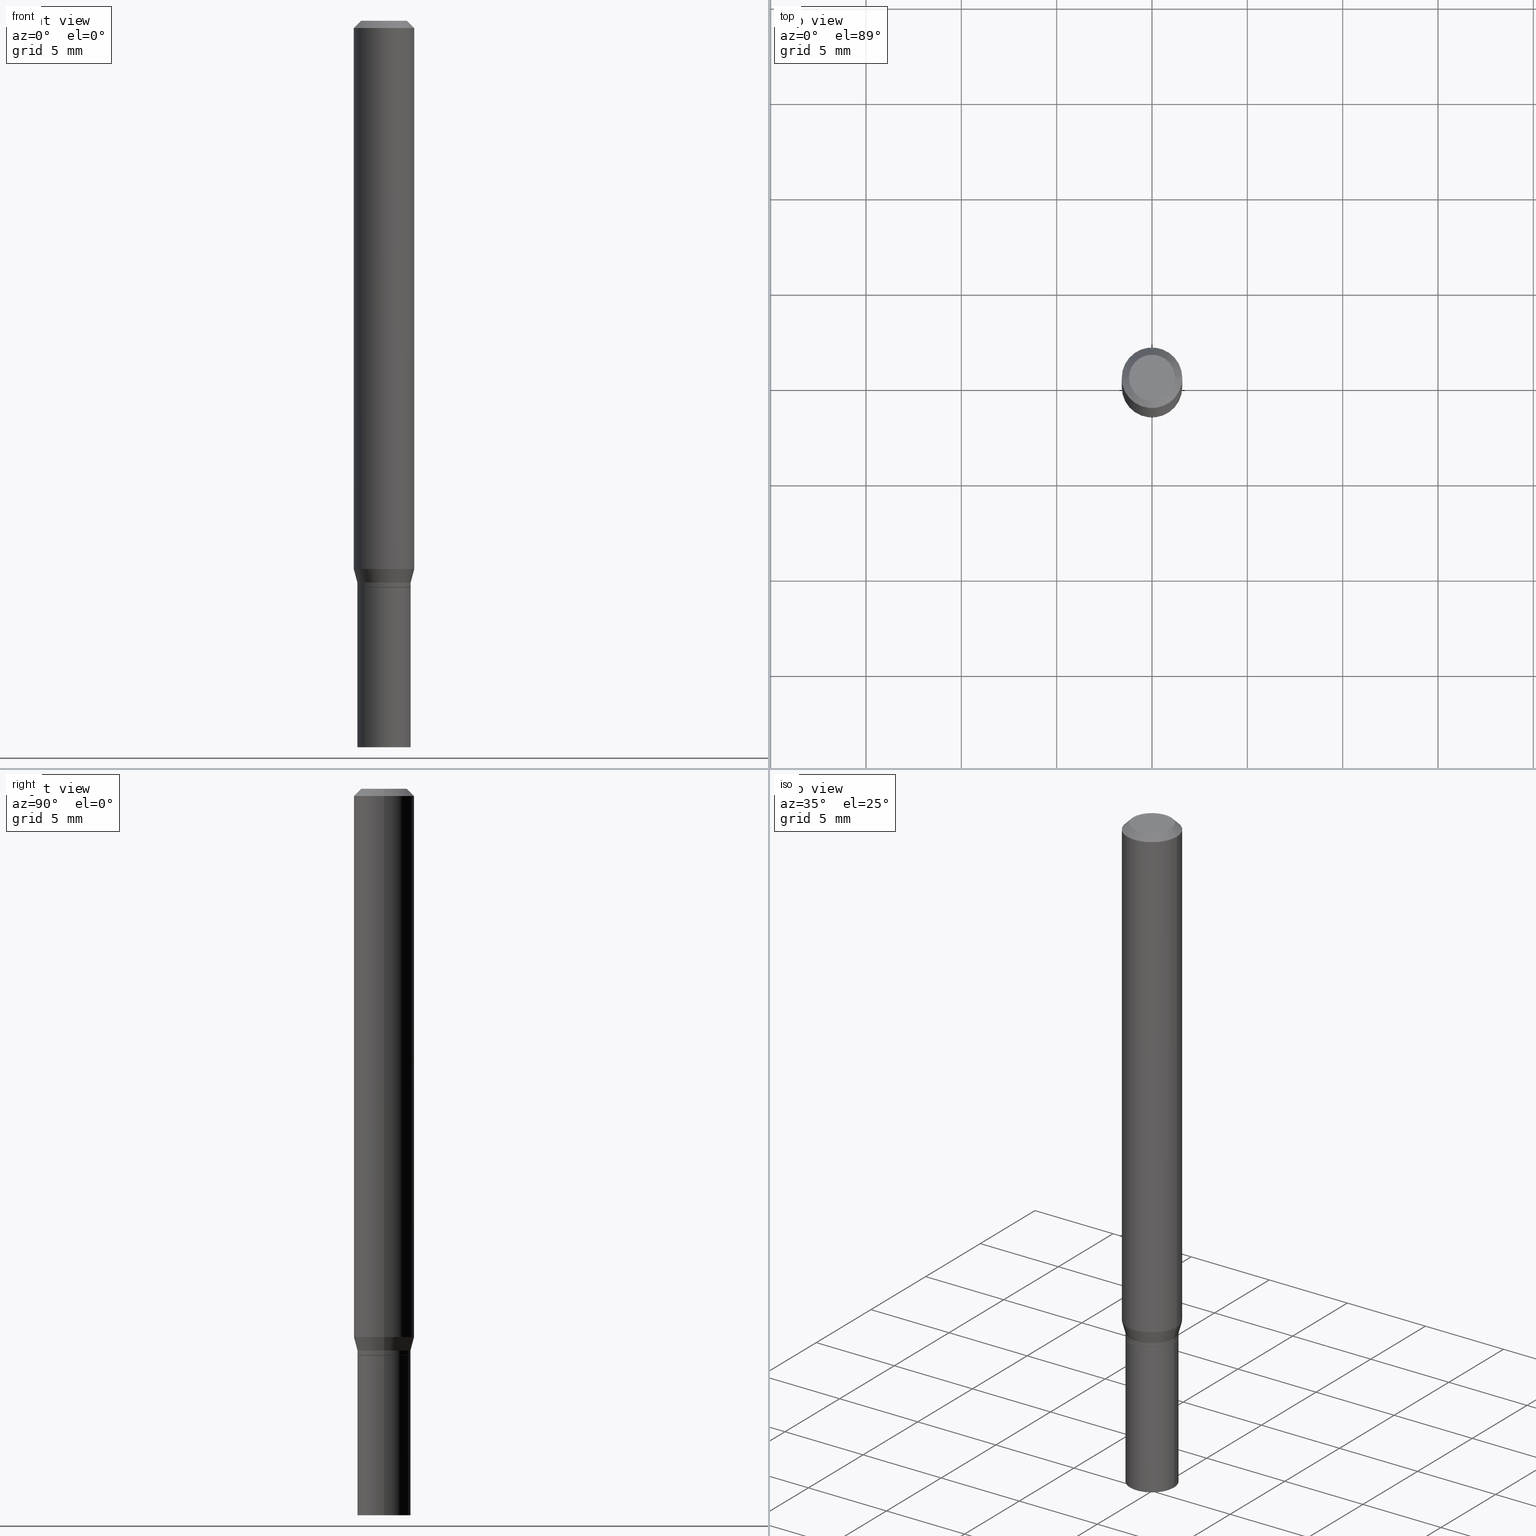
[diagram: canonical four-view strip — front | top / right | iso, engineering-drawing reading convention]
A machine part, canonical four-view strip (front | top / right | iso — engineering-drawing reading convention). The complete STEP part file that produces these views, byte-faithful:
ISO-10303-21;
HEADER;
FILE_DESCRIPTION (( 'STEP AP203' ),
    '1' );
FILE_NAME ('00878.STEP',
    '2024-03-19T22:45:41',
    ( '' ),
    ( '' ),
    'SwSTEP 2.0',
    'SolidWorks 2023',
    '' );
FILE_SCHEMA (( 'CONFIG_CONTROL_DESIGN' ));
ENDSEC;

DATA;
#1 = DIRECTION ( 'NONE',  ( -2.445468806185136877E-29, 3.491481338843145188E-15, 1.000000000000000000 ) ) ;
#2 = PERSON_AND_ORGANIZATION ( #445, #74 ) ;
#3 = ORIENTED_EDGE ( 'NONE', *, *, #59, .F. ) ;
#4 = DATE_AND_TIME ( #185, #334 ) ;
#5 = VERTEX_POINT ( 'NONE', #393 ) ;
#6 = FACE_OUTER_BOUND ( 'NONE', #103, .T. ) ;
#7 = ORIENTED_EDGE ( 'NONE', *, *, #268, .F. ) ;
#8 = DIRECTION ( 'NONE',  ( -2.445468806185136597E-29, 3.491481338843145583E-15, 1.000000000000000000 ) ) ;
#9 = VERTEX_POINT ( 'NONE', #287 ) ;
#10 = PRODUCT_RELATED_PRODUCT_CATEGORY ( 'detail', '', ( #371 ) ) ;
#11 = CARTESIAN_POINT ( 'NONE',  ( 2.836743815174758520E-29, -4.050118353058049996E-15, -1.160000000000000142 ) ) ;
#12 = VERTEX_POINT ( 'NONE', #143 ) ;
#13 = AXIS2_PLACEMENT_3D ( 'NONE', #261, #8, #403 ) ;
#14 = DIRECTION ( 'NONE',  ( 1.000000000000000000, -6.982962677686262766E-15, 0.000000000000000000 ) ) ;
#15 = EDGE_LOOP ( 'NONE', ( #327, #330, #246, #456 ) ) ;
#16 = FACE_OUTER_BOUND ( 'NONE', #241, .T. ) ;
#17 =( CONVERSION_BASED_UNIT ( 'INCH', #93 ) LENGTH_UNIT ( ) NAMED_UNIT ( #48 ) );
#18 = ORIENTED_EDGE ( 'NONE', *, *, #122, .T. ) ;
#19 = CARTESIAN_POINT ( 'NONE',  ( 0.000000000000000000, 0.000000000000000000, 0.000000000000000000 ) ) ;
#20 = EDGE_CURVE ( 'NONE', #5, #462, #307, .T. ) ;
#21 = ORIENTED_EDGE ( 'NONE', *, *, #92, .F. ) ;
#22 = EDGE_CURVE ( 'NONE', #372, #12, #291, .T. ) ;
#23 = ORIENTED_EDGE ( 'NONE', *, *, #384, .T. ) ;
#24 = CARTESIAN_POINT ( 'NONE',  ( 3.316907271900976096E-16, 0.04749999999999999362, 9.606345999275825217E-17 ) ) ;
#25 = ORIENTED_EDGE ( 'NONE', *, *, #290, .T. ) ;
#26 = DIRECTION ( 'NONE',  ( -2.445468806185136877E-29, 3.491481338843145188E-15, 1.000000000000000000 ) ) ;
#27 = ORIENTED_EDGE ( 'NONE', *, *, #46, .T. ) ;
#28 = AXIS2_PLACEMENT_3D ( 'NONE', #132, #164, #173 ) ;
#29 = APPROVAL_ROLE ( '' ) ;
#30 = DIRECTION ( 'NONE',  ( -2.445468806185136597E-29, 3.491481338843145583E-15, 1.000000000000000000 ) ) ;
#31 = COORDINATED_UNIVERSAL_TIME_OFFSET ( 5, 0, .BEHIND. ) ;
#32 = LINE ( 'NONE', #197, #279 ) ;
#33 = LINE ( 'NONE', #177, #239 ) ;
#34 = AXIS2_PLACEMENT_3D ( 'NONE', #352, #30, #433 ) ;
#35 = AXIS2_PLACEMENT_3D ( 'NONE', #258, #325, #70 ) ;
#36 = AXIS2_PLACEMENT_3D ( 'NONE', #24, #60, #275 ) ;
#37 = EDGE_CURVE ( 'NONE', #9, #344, #33, .T. ) ;
#38 = DIRECTION ( 'NONE',  ( -2.445468806185136877E-29, 3.491481338843145188E-15, 1.000000000000000000 ) ) ;
#39 = UNCERTAINTY_MEASURE_WITH_UNIT (LENGTH_MEASURE( 1.000000000000000082E-05 ), #17, 'distance_accuracy_value', 'NONE');
#40 = PERSON_AND_ORGANIZATION ( #445, #74 ) ;
#41 = DIRECTION ( 'NONE',  ( -2.445468806185136597E-29, 3.491481338843145583E-15, 1.000000000000000000 ) ) ;
#42 = DIRECTION ( 'NONE',  ( -1.000000000000000000, 6.982962677686266711E-15, 0.000000000000000000 ) ) ;
#43 = EDGE_CURVE ( 'NONE', #344, #61, #105, .T. ) ;
#44 = CLOSED_SHELL ( 'NONE', ( #205, #129, #217, #67 ) ) ;
#45 = CARTESIAN_POINT ( 'NONE',  ( -0.05500000000000000028, -4.270329082687544462E-15, -1.500000000000000222 ) ) ;
#46 = EDGE_CURVE ( 'NONE', #413, #372, #359, .T. ) ;
#47 = LINE ( 'NONE', #447, #188 ) ;
#48 = DIMENSIONAL_EXPONENTS ( 1.000000000000000000, 0.000000000000000000, 0.000000000000000000, 0.000000000000000000, 0.000000000000000000, 0.000000000000000000, 0.000000000000000000 ) ;
#49 = DIRECTION ( 'NONE',  ( -2.445468806185136877E-29, 3.491481338843145188E-15, 1.000000000000000000 ) ) ;
#50 = CONICAL_SURFACE ( 'NONE', #332, 0.05499999999999992395, 0.2617993877991495744 ) ;
#51 = CC_DESIGN_PERSON_AND_ORGANIZATION_ASSIGNMENT ( #222, #466, ( #371 ) ) ;
#52 = CARTESIAN_POINT ( 'NONE',  ( 0.05500000000000006273, -4.467350373049804337E-15, -1.169499999999999984 ) ) ;
#53 = CARTESIAN_POINT ( 'NONE',  ( 0.000000000000000000, 0.000000000000000000, 0.000000000000000000 ) ) ;
#54 = LINE ( 'NONE', #380, #421 ) ;
#55 = ORIENTED_EDGE ( 'NONE', *, *, #355, .F. ) ;
#56 = AXIS2_PLACEMENT_3D ( 'NONE', #296, #151, #299 ) ;
#57 = AXIS2_PLACEMENT_3D ( 'NONE', #387, #98, #236 ) ;
#58 = ORIENTED_EDGE ( 'NONE', *, *, #82, .F. ) ;
#59 = EDGE_CURVE ( 'NONE', #200, #12, #123, .T. ) ;
#60 = DIRECTION ( 'NONE',  ( 2.438088387897960049E-29, -3.491481338843145188E-15, -1.000000000000000000 ) ) ;
#61 = VERTEX_POINT ( 'NONE', #180 ) ;
#62 = FACE_OUTER_BOUND ( 'NONE', #167, .T. ) ;
#63 = ORIENTED_EDGE ( 'NONE', *, *, #309, .T. ) ;
#64 = COORDINATED_UNIVERSAL_TIME_OFFSET ( 5, 0, .BEHIND. ) ;
#65 = VECTOR ( 'NONE', #271, 39.37007874015748143 ) ;
#66 = VERTEX_POINT ( 'NONE', #254 ) ;
#67 = ADVANCED_FACE ( 'NONE', ( #363 ), #252, .F. ) ;
#68 = APPROVAL_DATE_TIME ( #4, #155 ) ;
#69 = CARTESIAN_POINT ( 'NONE',  ( 0.06250000000000000000, -4.364351673553916694E-16, 3.047610484872459871E-30 ) ) ;
#70 = DIRECTION ( 'NONE',  ( 1.000000000000000000, -6.982962677686266711E-15, 0.000000000000000000 ) ) ;
#71 = EDGE_CURVE ( 'NONE', #101, #347, #231, .T. ) ;
#72 = PERSON_AND_ORGANIZATION_ROLE ( 'creator' ) ;
#73 = DIRECTION ( 'NONE',  ( -2.438088387897960049E-29, 3.491481338843145188E-15, 1.000000000000000000 ) ) ;
#74 = ORGANIZATION ( 'UNSPECIFIED', 'UNSPECIFIED', '' ) ;
#75 = ADVANCED_BREP_SHAPE_REPRESENTATION ( '00878', ( #148, #303, #107 ), #248 ) ;
#76 = CALENDAR_DATE ( 2024, 19, 3 ) ;
#77 = DIRECTION ( 'NONE',  ( -1.000000000000000000, 6.982962677686265922E-15, -4.876176775795935793E-29 ) ) ;
#78 = CARTESIAN_POINT ( 'NONE',  ( 2.768294211427200085E-29, -3.952390459931239169E-15, -1.132009618943233376 ) ) ;
#79 = FACE_OUTER_BOUND ( 'NONE', #91, .T. ) ;
#80 = ORIENTED_EDGE ( 'NONE', *, *, #345, .F. ) ;
#81 = DIRECTION ( 'NONE',  ( 2.445468806185136597E-29, -3.491481338843145583E-15, -1.000000000000000000 ) ) ;
#82 = EDGE_CURVE ( 'NONE', #9, #454, #366, .T. ) ;
#83 = CYLINDRICAL_SURFACE ( 'NONE', #320, 0.05500000000000000028 ) ;
#84 = DIRECTION ( 'NONE',  ( -2.445468806185136877E-29, 3.491481338843145188E-15, 1.000000000000000000 ) ) ;
#85 = AXIS2_PLACEMENT_3D ( 'NONE', #440, #81, #42 ) ;
#86 = CIRCLE ( 'NONE', #13, 0.05500000000000000028 ) ;
#87 = DIRECTION ( 'NONE',  ( 1.000000000000000000, -6.982962677686266711E-15, 4.876176775795935793E-29 ) ) ;
#88 = ORIENTED_EDGE ( 'NONE', *, *, #71, .F. ) ;
#89 = ADVANCED_FACE ( 'NONE', ( #221 ), #50, .T. ) ;
#90 = LINE ( 'NONE', #340, #266 ) ;
#91 = EDGE_LOOP ( 'NONE', ( #194, #140, #278, #423 ) ) ;
#92 = EDGE_CURVE ( 'NONE', #347, #413, #215, .T. ) ;
#93 = LENGTH_MEASURE_WITH_UNIT ( LENGTH_MEASURE( 0.02539999999999999897 ), #233 );
#94 = CC_DESIGN_PERSON_AND_ORGANIZATION_ASSIGNMENT ( #2, #360, ( #240 ) ) ;
#95 = ORIENTED_EDGE ( 'NONE', *, *, #345, .T. ) ;
#96 = AXIS2_PLACEMENT_3D ( 'NONE', #176, #461, #137 ) ;
#97 = CIRCLE ( 'NONE', #181, 0.05449999999999999983 ) ;
#98 = DIRECTION ( 'NONE',  ( -2.445468806185136597E-29, 3.491481338843145583E-15, 1.000000000000000000 ) ) ;
#99 = ORIENTED_EDGE ( 'NONE', *, *, #355, .T. ) ;
#100 = DIRECTION ( 'NONE',  ( 1.000000000000000000, -6.982962677686270655E-15, 0.000000000000000000 ) ) ;
#101 = VERTEX_POINT ( 'NONE', #141 ) ;
#102 = APPROVAL_STATUS ( 'not_yet_approved' ) ;
#103 = EDGE_LOOP ( 'NONE', ( #204, #99, #313, #388 ) ) ;
#104 = CARTESIAN_POINT ( 'NONE',  ( 0.000000000000000000, 0.000000000000000000, 0.000000000000000000 ) ) ;
#105 = CIRCLE ( 'NONE', #35, 0.06250000000000000000 ) ;
#106 = DIRECTION ( 'NONE',  ( -2.445468806185136597E-29, 3.491481338843145583E-15, 1.000000000000000000 ) ) ;
#107 = AXIS2_PLACEMENT_3D ( 'NONE', #104, #353, #324 ) ;
#108 = APPROVAL_ROLE ( '' ) ;
#109 = DIRECTION ( 'NONE',  ( 1.000000000000000000, -6.982962677686267499E-15, 4.852736867747366768E-29 ) ) ;
#110 = CARTESIAN_POINT ( 'NONE',  ( 0.05449999999999999983, -4.465604632380382045E-15, -1.170000000000000151 ) ) ;
#111 = DIRECTION ( 'NONE',  ( 0.7071067811865352493, -7.319954787623213447E-15, -0.7071067811865597852 ) ) ;
#112 = DIRECTION ( 'NONE',  ( -2.445468806185136597E-29, 3.491481338843145583E-15, 1.000000000000000000 ) ) ;
#113 = DIRECTION ( 'NONE',  ( 1.000000000000000000, -6.982962677686270655E-15, 0.000000000000000000 ) ) ;
#114 = ORIENTED_EDGE ( 'NONE', *, *, #274, .T. ) ;
#115 = DIRECTION ( 'NONE',  ( 1.000000000000000000, -6.982962677686262766E-15, 0.000000000000000000 ) ) ;
#116 = ORIENTED_EDGE ( 'NONE', *, *, #158, .T. ) ;
#117 = AXIS2_PLACEMENT_3D ( 'NONE', #230, #375, #444 ) ;
#118 = CARTESIAN_POINT ( 'NONE',  ( 0.06250000000000000000, -4.888073874380388472E-16, -0.01499999999999999944 ) ) ;
#119 = ADVANCED_FACE ( 'NONE', ( #294 ), #226, .T. ) ;
#120 = DIRECTION ( 'NONE',  ( 1.000000000000000000, -6.982962677686266711E-15, 4.876176775795935793E-29 ) ) ;
#121 = DIRECTION ( 'NONE',  ( 1.000000000000000000, -6.982962677686272233E-15, 0.000000000000000000 ) ) ;
#122 = EDGE_CURVE ( 'NONE', #454, #9, #298, .T. ) ;
#123 = CIRCLE ( 'NONE', #463, 0.06250000000000000000 ) ;
#124 = AXIS2_PLACEMENT_3D ( 'NONE', #19, #458, #87 ) ;
#125 = DIRECTION ( 'NONE',  ( -2.445468806185136597E-29, 3.491481338843145583E-15, 1.000000000000000000 ) ) ;
#126 = ORIENTED_EDGE ( 'NONE', *, *, #37, .F. ) ;
#127 = ORIENTED_EDGE ( 'NONE', *, *, #378, .F. ) ;
#128 = CYLINDRICAL_SURFACE ( 'NONE', #400, 0.06250000000000000000 ) ;
#129 = ADVANCED_FACE ( 'NONE', ( #285 ), #427, .F. ) ;
#130 = ORIENTED_EDGE ( 'NONE', *, *, #22, .F. ) ;
#131 = CIRCLE ( 'NONE', #374, 0.05500000000000000028 ) ;
#132 = CARTESIAN_POINT ( 'NONE',  ( 3.668203209277705088E-31, -5.237222008264718399E-17, -0.01499999999999999944 ) ) ;
#133 = EDGE_LOOP ( 'NONE', ( #18, #349 ) ) ;
#134 = CARTESIAN_POINT ( 'NONE',  ( -0.05499999999999992395, -3.583810549235585944E-15, -1.160000000000000142 ) ) ;
#135 = VERTEX_POINT ( 'NONE', #110 ) ;
#136 = PERSON_AND_ORGANIZATION_ROLE ( 'creator' ) ;
#137 = DIRECTION ( 'NONE',  ( 1.000000000000000000, -6.982962677686267499E-15, 4.852736867747366768E-29 ) ) ;
#138 = EDGE_CURVE ( 'NONE', #200, #344, #361, .T. ) ;
#139 = PERSON_AND_ORGANIZATION ( #445, #74 ) ;
#140 = ORIENTED_EDGE ( 'NONE', *, *, #71, .T. ) ;
#141 = CARTESIAN_POINT ( 'NONE',  ( -0.05500000000000006273, -3.692488921109003115E-15, -1.169499999999999984 ) ) ;
#142 = DATE_TIME_ROLE ( 'classification_date' ) ;
#143 = CARTESIAN_POINT ( 'NONE',  ( -0.06250000000000000000, -3.508301250081176552E-15, -1.132009618943233376 ) ) ;
#144 = APPLICATION_CONTEXT ( 'configuration controlled 3d designs of mechanical parts and assemblies' ) ;
#145 = CARTESIAN_POINT ( 'NONE',  ( 2.861198503236610065E-29, -4.085033166446480067E-15, -1.170000000000000151 ) ) ;
#146 = AXIS2_PLACEMENT_3D ( 'NONE', #145, #437, #431 ) ;
#147 = CIRCLE ( 'NONE', #301, 0.05500000000000006273 ) ;
#148 = MANIFOLD_SOLID_BREP ( 'Body-Move/Copy2[1]', #44 ) ;
#149 = CARTESIAN_POINT ( 'NONE',  ( 2.861198503236610065E-29, -4.085033166446480067E-15, -1.170000000000000151 ) ) ;
#150 = CARTESIAN_POINT ( 'NONE',  ( 0.05500000000000000028, -3.840629472727446888E-16, 2.681897226687764826E-30 ) ) ;
#151 = DIRECTION ( 'NONE',  ( -2.445468806185136597E-29, 3.491481338843145583E-15, 1.000000000000000000 ) ) ;
#152 = ORIENTED_EDGE ( 'NONE', *, *, #229, .F. ) ;
#153 = CIRCLE ( 'NONE', #211, 0.06250000000000000000 ) ;
#154 = APPROVAL_PERSON_ORGANIZATION ( #175, #263, #108 ) ;
#155 = APPROVAL ( #256, 'UNSPECIFIED' ) ;
#156 = DIRECTION ( 'NONE',  ( -2.445468806185136597E-29, 3.491481338843145583E-15, 1.000000000000000000 ) ) ;
#157 = CYLINDRICAL_SURFACE ( 'NONE', #265, 0.05500000000000000028 ) ;
#158 = EDGE_CURVE ( 'NONE', #101, #372, #32, .T. ) ;
#159 = DIRECTION ( 'NONE',  ( 1.000000000000000000, -6.982962677686265922E-15, 4.876176775795935232E-29 ) ) ;
#160 = ORIENTED_EDGE ( 'NONE', *, *, #191, .T. ) ;
#161 = CC_DESIGN_PERSON_AND_ORGANIZATION_ASSIGNMENT ( #284, #72, ( #240 ) ) ;
#162 = VECTOR ( 'NONE', #1, 39.37007874015748143 ) ;
#163 = CC_DESIGN_APPROVAL ( #255, ( #240 ) ) ;
#164 = DIRECTION ( 'NONE',  ( 2.445468806185136597E-29, -3.491481338843145583E-15, -1.000000000000000000 ) ) ;
#165 = EDGE_LOOP ( 'NONE', ( #315, #55 ) ) ;
#166 =( NAMED_UNIT ( * ) SI_UNIT ( $, .STERADIAN. ) SOLID_ANGLE_UNIT ( ) );
#167 = EDGE_LOOP ( 'NONE', ( #23, #116, #386, #21 ) ) ;
#168 = EDGE_CURVE ( 'NONE', #66, #5, #302, .T. ) ;
#169 = CARTESIAN_POINT ( 'NONE',  ( 2.861198503236610065E-29, -4.085033166446480067E-15, -1.170000000000000151 ) ) ;
#170 = ORIENTED_EDGE ( 'NONE', *, *, #260, .T. ) ;
#171 = AXIS2_PLACEMENT_3D ( 'NONE', #259, #354, #109 ) ;
#172 = APPROVAL_PERSON_ORGANIZATION ( #288, #255, #245 ) ;
#173 = DIRECTION ( 'NONE',  ( -1.000000000000000000, 6.982962677686266711E-15, 0.000000000000000000 ) ) ;
#174 = ORIENTED_EDGE ( 'NONE', *, *, #309, .F. ) ;
#175 = PERSON_AND_ORGANIZATION ( #445, #74 ) ;
#176 = CARTESIAN_POINT ( 'NONE',  ( -1.280979716297259006E-44, 1.828899540070383801E-30, 5.238176471756152972E-16 ) ) ;
#177 = CARTESIAN_POINT ( 'NONE',  ( 0.06250000000000000000, -4.811533449433679005E-16, -0.01499999999999999944 ) ) ;
#178 = CC_DESIGN_PERSON_AND_ORGANIZATION_ASSIGNMENT ( #139, #249, ( #196 ) ) ;
#179 = VECTOR ( 'NONE', #187, 39.37007874015748143 ) ;
#180 = CARTESIAN_POINT ( 'NONE',  ( -0.06250000000000000000, -1.558292130156880705E-15, -0.01499999999999999944 ) ) ;
#181 = AXIS2_PLACEMENT_3D ( 'NONE', #169, #453, #100 ) ;
#182 = APPLICATION_CONTEXT ( 'configuration controlled 3d designs of mechanical parts and assemblies' ) ;
#183 = SECURITY_CLASSIFICATION_LEVEL ( 'unclassified' ) ;
#184 = CARTESIAN_POINT ( 'NONE',  ( -0.05499999999999992395, -3.659319848389994547E-15, -1.160000000000000142 ) ) ;
#185 = CALENDAR_DATE ( 2024, 19, 3 ) ;
#186 = CARTESIAN_POINT ( 'NONE',  ( 2.836743815174758520E-29, -4.050118353058049996E-15, -1.160000000000000142 ) ) ;
#187 = DIRECTION ( 'NONE',  ( 0.7071067811865656694, -2.468850131082446387E-15, 0.7071067811865294761 ) ) ;
#188 = VECTOR ( 'NONE', #370, 39.37007874015748143 ) ;
#189 = CARTESIAN_POINT ( 'NONE',  ( -0.05449999999999999983, -3.695138148283114316E-15, -1.170000000000000151 ) ) ;
#190 = VERTEX_POINT ( 'NONE', #189 ) ;
#191 = EDGE_CURVE ( 'NONE', #462, #5, #131, .T. ) ;
#192 = CARTESIAN_POINT ( 'NONE',  ( 3.668203209277704895E-29, -5.237222008264718177E-15, -1.500000000000000222 ) ) ;
#193 = CARTESIAN_POINT ( 'NONE',  ( 0.06250000000000000000, -4.388825627286631627E-15, -1.132009618943233376 ) ) ;
#194 = ORIENTED_EDGE ( 'NONE', *, *, #158, .F. ) ;
#195 = VECTOR ( 'NONE', #38, 39.37007874015748143 ) ;
#196 = SECURITY_CLASSIFICATION ( '', '', #183 ) ;
#197 = CARTESIAN_POINT ( 'NONE',  ( -0.05499999999999999334, 3.907985046680550549E-16, -2.705414299640198012E-30 ) ) ;
#198 = FACE_OUTER_BOUND ( 'NONE', #235, .T. ) ;
#199 = LINE ( 'NONE', #234, #383 ) ;
#200 = VERTEX_POINT ( 'NONE', #193 ) ;
#201 = CIRCLE ( 'NONE', #247, 0.05499999999999992395 ) ;
#202 = CC_DESIGN_APPROVAL ( #263, ( #343 ) ) ;
#203 =( NAMED_UNIT ( * ) PLANE_ANGLE_UNIT ( ) SI_UNIT ( $, .RADIAN. ) );
#204 = ORIENTED_EDGE ( 'NONE', *, *, #439, .F. ) ;
#205 = ADVANCED_FACE ( 'NONE', ( #224 ), #83, .T. ) ;
#206 = CYLINDRICAL_SURFACE ( 'NONE', #232, 0.05499999999999999334 ) ;
#207 = EDGE_LOOP ( 'NONE', ( #130, #25, #170, #152 ) ) ;
#208 = CC_DESIGN_DATE_AND_TIME_ASSIGNMENT ( #351, #142, ( #196 ) ) ;
#209 = FACE_OUTER_BOUND ( 'NONE', #133, .T. ) ;
#210 = ORIENTED_EDGE ( 'NONE', *, *, #43, .F. ) ;
#211 = AXIS2_PLACEMENT_3D ( 'NONE', #78, #304, #14 ) ;
#212 = APPLICATION_PROTOCOL_DEFINITION ( 'international standard', 'config_control_design', 1994, #182 ) ;
#213 = ADVANCED_FACE ( 'NONE', ( #16 ), #405, .T. ) ;
#214 = DIRECTION ( 'NONE',  ( 1.000000000000000000, -6.982962677686262766E-15, 0.000000000000000000 ) ) ;
#215 = LINE ( 'NONE', #323, #162 ) ;
#216 = DIRECTION ( 'NONE',  ( 1.000000000000000000, -6.982962677686272233E-15, 0.000000000000000000 ) ) ;
#217 = ADVANCED_FACE ( 'NONE', ( #6 ), #157, .T. ) ;
#218 = AXIS2_PLACEMENT_3D ( 'NONE', #401, #289, #77 ) ;
#219 = APPROVAL_DATE_TIME ( #397, #255 ) ;
#220 = CC_DESIGN_APPROVAL ( #155, ( #196 ) ) ;
#221 = FACE_OUTER_BOUND ( 'NONE', #207, .T. ) ;
#222 = PERSON_AND_ORGANIZATION ( #445, #74 ) ;
#223 = DIRECTION ( 'NONE',  ( 1.000000000000000000, -6.982962677686271444E-15, 0.000000000000000000 ) ) ;
#224 = FACE_OUTER_BOUND ( 'NONE', #310, .T. ) ;
#225 = CARTESIAN_POINT ( 'NONE',  ( 2.861198503236610065E-29, -4.085033166446480067E-15, -1.170000000000000151 ) ) ;
#226 = CONICAL_SURFACE ( 'NONE', #34, 0.05449999999999999983, 0.7853981633974739252 ) ;
#227 = DIRECTION ( 'NONE',  ( -2.445468806185136597E-29, 3.491481338843145583E-15, 1.000000000000000000 ) ) ;
#228 = CARTESIAN_POINT ( 'NONE',  ( 0.05499999999999992395, -4.434181300330794192E-15, -1.160000000000000142 ) ) ;
#229 = EDGE_CURVE ( 'NONE', #12, #200, #153, .T. ) ;
#230 = CARTESIAN_POINT ( 'NONE',  ( 2.861198503236610065E-29, -4.085033166446480067E-15, -1.170000000000000151 ) ) ;
#231 = CIRCLE ( 'NONE', #411, 0.05500000000000006273 ) ;
#232 = AXIS2_PLACEMENT_3D ( 'NONE', #414, #348, #159 ) ;
#233 =( LENGTH_UNIT ( ) NAMED_UNIT ( * ) SI_UNIT ( $, .METRE. ) );
#234 = CARTESIAN_POINT ( 'NONE',  ( -0.05500000000000000028, 3.907985046680551042E-16, -2.705414299640198362E-30 ) ) ;
#235 = EDGE_LOOP ( 'NONE', ( #451, #417, #379, #174 ) ) ;
#236 = DIRECTION ( 'NONE',  ( 1.000000000000000000, -6.982962677686270655E-15, 0.000000000000000000 ) ) ;
#237 = EDGE_LOOP ( 'NONE', ( #127, #80 ) ) ;
#238 = AXIS2_PLACEMENT_3D ( 'NONE', #317, #106, #216 ) ;
#239 = VECTOR ( 'NONE', #111, 39.37007874015748143 ) ;
#240 = PRODUCT_DEFINITION_FORMATION_WITH_SPECIFIED_SOURCE ( 'ANY', '', #371, .NOT_KNOWN. ) ;
#241 = EDGE_LOOP ( 'NONE', ( #58, #404, #452, #311 ) ) ;
#242 = ADVANCED_FACE ( 'NONE', ( #406 ), #419, .T. ) ;
#243 = DIRECTION ( 'NONE',  ( -2.445468806185136597E-29, 3.491481338843145583E-15, 1.000000000000000000 ) ) ;
#244 = VERTEX_POINT ( 'NONE', #45 ) ;
#245 = APPROVAL_ROLE ( '' ) ;
#246 = ORIENTED_EDGE ( 'NONE', *, *, #384, .F. ) ;
#247 = AXIS2_PLACEMENT_3D ( 'NONE', #11, #333, #121 ) ;
#248 =( GEOMETRIC_REPRESENTATION_CONTEXT ( 3 ) GLOBAL_UNCERTAINTY_ASSIGNED_CONTEXT ( ( #39 ) ) GLOBAL_UNIT_ASSIGNED_CONTEXT ( ( #17, #203, #166 ) ) REPRESENTATION_CONTEXT ( 'NONE', 'WORKASPACE' ) );
#249 = PERSON_AND_ORGANIZATION_ROLE ( 'classification_officer' ) ;
#250 = DIRECTION ( 'NONE',  ( 1.000000000000000000, -6.982962677686265922E-15, 4.876176775795935793E-29 ) ) ;
#251 = CALENDAR_DATE ( 2024, 19, 3 ) ;
#252 = PLANE ( 'NONE',  #218 ) ;
#253 = MECHANICAL_CONTEXT ( 'NONE', #182, 'mechanical' ) ;
#254 = CARTESIAN_POINT ( 'NONE',  ( 0.05500000000000000028, -5.621284955537463161E-15, -1.500000000000000222 ) ) ;
#255 = APPROVAL ( #102, 'UNSPECIFIED' ) ;
#256 = APPROVAL_STATUS ( 'not_yet_approved' ) ;
#257 = CIRCLE ( 'NONE', #293, 0.05449999999999999983 ) ;
#258 = CARTESIAN_POINT ( 'NONE',  ( 3.668203209277705088E-31, -5.237222008264718399E-17, -0.01499999999999999944 ) ) ;
#259 = CARTESIAN_POINT ( 'NONE',  ( -1.280979716297259006E-44, 1.828899540070383801E-30, 5.238176471756152972E-16 ) ) ;
#260 = EDGE_CURVE ( 'NONE', #413, #200, #329, .T. ) ;
#261 = CARTESIAN_POINT ( 'NONE',  ( 3.668203209277704895E-29, -5.237222008264718177E-15, -1.500000000000000222 ) ) ;
#262 = ORIENTED_EDGE ( 'NONE', *, *, #408, .T. ) ;
#263 = APPROVAL ( #362, 'UNSPECIFIED' ) ;
#264 = DIRECTION ( 'NONE',  ( -2.445468806185136597E-29, 3.491481338843145583E-15, 1.000000000000000000 ) ) ;
#265 = AXIS2_PLACEMENT_3D ( 'NONE', #295, #264, #267 ) ;
#266 = VECTOR ( 'NONE', #272, 39.37007874015748143 ) ;
#267 = DIRECTION ( 'NONE',  ( 1.000000000000000000, -6.982962677686266711E-15, 4.876176775795935793E-29 ) ) ;
#268 = EDGE_CURVE ( 'NONE', #190, #101, #47, .T. ) ;
#269 = ORIENTED_EDGE ( 'NONE', *, *, #439, .T. ) ;
#270 = CARTESIAN_POINT ( 'NONE',  ( 0.05449999999999999983, -4.465604632380382045E-15, -1.170000000000000151 ) ) ;
#271 = DIRECTION ( 'NONE',  ( 0.2588190451025209060, 1.565188264969625123E-15, 0.9659258262890682012 ) ) ;
#272 = DIRECTION ( 'NONE',  ( -2.445468806185136877E-29, 3.491481338843145188E-15, 1.000000000000000000 ) ) ;
#273 = EDGE_LOOP ( 'NONE', ( #381, #160 ) ) ;
#274 = EDGE_CURVE ( 'NONE', #66, #244, #382, .T. ) ;
#275 = DIRECTION ( 'NONE',  ( -1.000000000000000000, 6.982962677686265922E-15, -4.876176775795935793E-29 ) ) ;
#276 = EDGE_LOOP ( 'NONE', ( #415, #306, #210, #389 ) ) ;
#277 = DIRECTION ( 'NONE',  ( -2.445468806185136597E-29, 3.491481338843145583E-15, 1.000000000000000000 ) ) ;
#278 = ORIENTED_EDGE ( 'NONE', *, *, #92, .T. ) ;
#279 = VECTOR ( 'NONE', #84, 39.37007874015748143 ) ;
#280 = DIRECTION ( 'NONE',  ( -0.7071067811865352493, 2.468850131082128476E-15, -0.7071067811865597852 ) ) ;
#281 = ORIENTED_EDGE ( 'NONE', *, *, #168, .F. ) ;
#282 = DATE_AND_TIME ( #434, #321 ) ;
#283 = ORIENTED_EDGE ( 'NONE', *, *, #260, .F. ) ;
#284 = PERSON_AND_ORGANIZATION ( #445, #74 ) ;
#285 = FACE_OUTER_BOUND ( 'NONE', #165, .T. ) ;
#286 = CIRCLE ( 'NONE', #56, 0.06250000000000000000 ) ;
#287 = CARTESIAN_POINT ( 'NONE',  ( 0.04749999999999999362, -4.035134999187569255E-16, 5.238176471756178610E-16 ) ) ;
#288 = PERSON_AND_ORGANIZATION ( #445, #74 ) ;
#289 = DIRECTION ( 'NONE',  ( 2.438088387897960049E-29, -3.491481338843145188E-15, -1.000000000000000000 ) ) ;
#290 = EDGE_CURVE ( 'NONE', #372, #413, #201, .T. ) ;
#291 = LINE ( 'NONE', #184, #441 ) ;
#292 = AXIS2_PLACEMENT_3D ( 'NONE', #398, #73, #250 ) ;
#293 = AXIS2_PLACEMENT_3D ( 'NONE', #149, #438, #113 ) ;
#294 = FACE_OUTER_BOUND ( 'NONE', #15, .T. ) ;
#295 = CARTESIAN_POINT ( 'NONE',  ( 0.000000000000000000, 0.000000000000000000, 0.000000000000000000 ) ) ;
#296 = CARTESIAN_POINT ( 'NONE',  ( 3.668203209277705088E-31, -5.237222008264718399E-17, -0.01499999999999999944 ) ) ;
#297 = EDGE_CURVE ( 'NONE', #135, #347, #446, .T. ) ;
#298 = CIRCLE ( 'NONE', #96, 0.04749999999999999362 ) ;
#299 = DIRECTION ( 'NONE',  ( 1.000000000000000000, -6.982962677686266711E-15, 0.000000000000000000 ) ) ;
#300 = APPROVAL_PERSON_ORGANIZATION ( #40, #155, #29 ) ;
#301 = AXIS2_PLACEMENT_3D ( 'NONE', #376, #243, #418 ) ;
#302 = LINE ( 'NONE', #150, #428 ) ;
#303 = MANIFOLD_SOLID_BREP ( 'Body-Move/Copy2[2]', #342 ) ;
#304 = DIRECTION ( 'NONE',  ( -2.445468806185136597E-29, 3.491481338843145583E-15, 1.000000000000000000 ) ) ;
#305 = CARTESIAN_POINT ( 'NONE',  ( -0.04749999999999999362, 3.578768372314219874E-16, 5.238176471756128320E-16 ) ) ;
#306 = ORIENTED_EDGE ( 'NONE', *, *, #373, .T. ) ;
#307 = CIRCLE ( 'NONE', #146, 0.05500000000000000028 ) ;
#308 = CC_DESIGN_SECURITY_CLASSIFICATION ( #196, ( #240 ) ) ;
#309 = EDGE_CURVE ( 'NONE', #61, #344, #286, .T. ) ;
#310 = EDGE_LOOP ( 'NONE', ( #114, #269, #409, #281 ) ) ;
#311 = ORIENTED_EDGE ( 'NONE', *, *, #408, .F. ) ;
#312 = FACE_OUTER_BOUND ( 'NONE', #276, .T. ) ;
#313 = ORIENTED_EDGE ( 'NONE', *, *, #168, .T. ) ;
#314 = CYLINDRICAL_SURFACE ( 'NONE', #124, 0.06250000000000000000 ) ;
#315 = ORIENTED_EDGE ( 'NONE', *, *, #274, .F. ) ;
#316 = DESIGN_CONTEXT ( 'detailed design', #144, 'design' ) ;
#317 = CARTESIAN_POINT ( 'NONE',  ( 2.836743815174758520E-29, -4.050118353058049996E-15, -1.160000000000000142 ) ) ;
#318 = CALENDAR_DATE ( 2024, 19, 3 ) ;
#319 = CARTESIAN_POINT ( 'NONE',  ( 2.859975768833517263E-29, -4.083287425777059353E-15, -1.169499999999999984 ) ) ;
#320 = AXIS2_PLACEMENT_3D ( 'NONE', #328, #368, #120 ) ;
#321 = LOCAL_TIME ( 18, 45, 41.00000000000000000, #322 ) ;
#322 = COORDINATED_UNIVERSAL_TIME_OFFSET ( 5, 0, .BEHIND. ) ;
#323 = CARTESIAN_POINT ( 'NONE',  ( 0.05499999999999999334, -3.840629472727445902E-16, 2.681897226687764126E-30 ) ) ;
#324 = DIRECTION ( 'NONE',  ( 1.000000000000000000, 0.000000000000000000, 0.000000000000000000 ) ) ;
#325 = DIRECTION ( 'NONE',  ( -2.445468806185136597E-29, 3.491481338843145583E-15, 1.000000000000000000 ) ) ;
#326 = SHAPE_DEFINITION_REPRESENTATION ( #350, #75 ) ;
#327 = ORIENTED_EDGE ( 'NONE', *, *, #378, .T. ) ;
#328 = CARTESIAN_POINT ( 'NONE',  ( 0.000000000000000000, 0.000000000000000000, 0.000000000000000000 ) ) ;
#329 = LINE ( 'NONE', #228, #65 ) ;
#330 = ORIENTED_EDGE ( 'NONE', *, *, #268, .T. ) ;
#331 = DIRECTION ( 'NONE',  ( 1.000000000000000000, -6.982962677686262766E-15, 0.000000000000000000 ) ) ;
#332 = AXIS2_PLACEMENT_3D ( 'NONE', #186, #396, #402 ) ;
#333 = DIRECTION ( 'NONE',  ( -2.445468806185136597E-29, 3.491481338843145583E-15, 1.000000000000000000 ) ) ;
#334 = LOCAL_TIME ( 18, 45, 41.00000000000000000, #392 ) ;
#335 = EDGE_LOOP ( 'NONE', ( #27, #339, #3, #283 ) ) ;
#336 = DIRECTION ( 'NONE',  ( -2.445468806185136597E-29, 3.491481338843145583E-15, 1.000000000000000000 ) ) ;
#337 = FACE_OUTER_BOUND ( 'NONE', #425, .T. ) ;
#338 = ADVANCED_FACE ( 'NONE', ( #365 ), #410, .F. ) ;
#339 = ORIENTED_EDGE ( 'NONE', *, *, #22, .T. ) ;
#340 = CARTESIAN_POINT ( 'NONE',  ( -0.06250000000000000000, 4.440892098500626162E-16, -3.074334431409316114E-30 ) ) ;
#341 = EDGE_LOOP ( 'NONE', ( #126, #459, #262, #63 ) ) ;
#342 = CLOSED_SHELL ( 'NONE', ( #426, #119, #213, #399, #242, #89, #465, #442, #364, #338, #394, #358 ) ) ;
#343 = PRODUCT_DEFINITION ( 'UNKNOWN', '', #240, #316 ) ;
#344 = VERTEX_POINT ( 'NONE', #118 ) ;
#345 = EDGE_CURVE ( 'NONE', #190, #135, #257, .T. ) ;
#346 = CYLINDRICAL_SURFACE ( 'NONE', #443, 0.05499999999999999334 ) ;
#347 = VERTEX_POINT ( 'NONE', #52 ) ;
#348 = DIRECTION ( 'NONE',  ( -2.445468806185136597E-29, 3.491481338843145583E-15, 1.000000000000000000 ) ) ;
#349 = ORIENTED_EDGE ( 'NONE', *, *, #82, .T. ) ;
#350 = PRODUCT_DEFINITION_SHAPE ( 'NONE', 'NONE',  #343 ) ;
#351 = DATE_AND_TIME ( #318, #464 ) ;
#352 = CARTESIAN_POINT ( 'NONE',  ( 2.861198503236610065E-29, -4.085033166446480067E-15, -1.170000000000000151 ) ) ;
#353 = DIRECTION ( 'NONE',  ( 0.000000000000000000, 0.000000000000000000, 1.000000000000000000 ) ) ;
#354 = DIRECTION ( 'NONE',  ( -2.445468806185136597E-29, 3.491481338843145583E-15, 1.000000000000000000 ) ) ;
#355 = EDGE_CURVE ( 'NONE', #244, #66, #86, .T. ) ;
#356 = COORDINATED_UNIVERSAL_TIME_OFFSET ( 5, 0, .BEHIND. ) ;
#357 = CARTESIAN_POINT ( 'NONE',  ( 2.768294211427200085E-29, -3.952390459931239169E-15, -1.132009618943233376 ) ) ;
#358 = ADVANCED_FACE ( 'NONE', ( #79 ), #346, .T. ) ;
#359 = CIRCLE ( 'NONE', #238, 0.05499999999999992395 ) ;
#360 = PERSON_AND_ORGANIZATION_ROLE ( 'design_supplier' ) ;
#361 = LINE ( 'NONE', #69, #195 ) ;
#362 = APPROVAL_STATUS ( 'not_yet_approved' ) ;
#363 = FACE_OUTER_BOUND ( 'NONE', #273, .T. ) ;
#364 = ADVANCED_FACE ( 'NONE', ( #209 ), #385, .F. ) ;
#365 = FACE_OUTER_BOUND ( 'NONE', #237, .T. ) ;
#366 = CIRCLE ( 'NONE', #171, 0.04749999999999999362 ) ;
#367 = LOCAL_TIME ( 18, 45, 41.00000000000000000, #31 ) ;
#368 = DIRECTION ( 'NONE',  ( -2.445468806185136597E-29, 3.491481338843145583E-15, 1.000000000000000000 ) ) ;
#369 = DIRECTION ( 'NONE',  ( 1.000000000000000000, -6.982962677686272233E-15, 0.000000000000000000 ) ) ;
#370 = DIRECTION ( 'NONE',  ( -0.7071067811865656694, 7.493145998870420424E-15, 0.7071067811865294761 ) ) ;
#371 = PRODUCT ( '00878', '00878', '', ( #253 ) ) ;
#372 = VERTEX_POINT ( 'NONE', #134 ) ;
#373 = EDGE_CURVE ( 'NONE', #12, #61, #90, .T. ) ;
#374 = AXIS2_PLACEMENT_3D ( 'NONE', #225, #336, #115 ) ;
#375 = DIRECTION ( 'NONE',  ( -2.438088387897960049E-29, 3.491481338843145188E-15, 1.000000000000000000 ) ) ;
#376 = CARTESIAN_POINT ( 'NONE',  ( 2.859975768833517263E-29, -4.083287425777059353E-15, -1.169499999999999984 ) ) ;
#377 = FACE_OUTER_BOUND ( 'NONE', #341, .T. ) ;
#378 = EDGE_CURVE ( 'NONE', #135, #190, #97, .T. ) ;
#379 = ORIENTED_EDGE ( 'NONE', *, *, #138, .T. ) ;
#380 = CARTESIAN_POINT ( 'NONE',  ( -0.06250000000000000000, 3.840629472727444916E-16, -0.01499999999999999944 ) ) ;
#381 = ORIENTED_EDGE ( 'NONE', *, *, #20, .T. ) ;
#382 = CIRCLE ( 'NONE', #448, 0.05500000000000000028 ) ;
#383 = VECTOR ( 'NONE', #26, 39.37007874015748143 ) ;
#384 = EDGE_CURVE ( 'NONE', #347, #101, #147, .T. ) ;
#385 = PLANE ( 'NONE',  #36 ) ;
#386 = ORIENTED_EDGE ( 'NONE', *, *, #46, .F. ) ;
#387 = CARTESIAN_POINT ( 'NONE',  ( 2.861198503236610065E-29, -4.085033166446480067E-15, -1.170000000000000151 ) ) ;
#388 = ORIENTED_EDGE ( 'NONE', *, *, #191, .F. ) ;
#389 = ORIENTED_EDGE ( 'NONE', *, *, #138, .F. ) ;
#390 = AXIS2_PLACEMENT_3D ( 'NONE', #407, #227, #369 ) ;
#391 = LOCAL_TIME ( 18, 45, 41.00000000000000000, #64 ) ;
#392 = COORDINATED_UNIVERSAL_TIME_OFFSET ( 5, 0, .BEHIND. ) ;
#393 = CARTESIAN_POINT ( 'NONE',  ( 0.05500000000000000028, -4.469096113719225052E-15, -1.170000000000000151 ) ) ;
#394 = ADVANCED_FACE ( 'NONE', ( #337 ), #450, .T. ) ;
#395 = APPROVAL_DATE_TIME ( #460, #263 ) ;
#396 = DIRECTION ( 'NONE',  ( -2.445468806185136597E-29, 3.491481338843145583E-15, 1.000000000000000000 ) ) ;
#397 = DATE_AND_TIME ( #76, #391 ) ;
#398 = CARTESIAN_POINT ( 'NONE',  ( 3.584916967085606921E-29, -5.356492647442320375E-15, -1.500000000000000222 ) ) ;
#399 = ADVANCED_FACE ( 'NONE', ( #312 ), #128, .T. ) ;
#400 = AXIS2_PLACEMENT_3D ( 'NONE', #416, #277, #455 ) ;
#401 = CARTESIAN_POINT ( 'NONE',  ( 3.840629472727732850E-16, 0.05499999999999591327, -1.170000000000000151 ) ) ;
#402 = DIRECTION ( 'NONE',  ( 1.000000000000000000, -6.982962677686272233E-15, 0.000000000000000000 ) ) ;
#403 = DIRECTION ( 'NONE',  ( 1.000000000000000000, -6.982962677686262766E-15, 0.000000000000000000 ) ) ;
#404 = ORIENTED_EDGE ( 'NONE', *, *, #37, .T. ) ;
#405 = CONICAL_SURFACE ( 'NONE', #85, 0.06250000000000000000, 0.7853981633974309595 ) ;
#406 = FACE_OUTER_BOUND ( 'NONE', #335, .T. ) ;
#407 = CARTESIAN_POINT ( 'NONE',  ( 2.836743815174758520E-29, -4.050118353058049996E-15, -1.160000000000000142 ) ) ;
#408 = EDGE_CURVE ( 'NONE', #454, #61, #54, .T. ) ;
#409 = ORIENTED_EDGE ( 'NONE', *, *, #20, .F. ) ;
#410 = PLANE ( 'NONE',  #117 ) ;
#411 = AXIS2_PLACEMENT_3D ( 'NONE', #319, #112, #223 ) ;
#412 = CARTESIAN_POINT ( 'NONE',  ( -0.05500000000000000028, -4.270329082687544462E-15, -1.170000000000000151 ) ) ;
#413 = VERTEX_POINT ( 'NONE', #422 ) ;
#414 = CARTESIAN_POINT ( 'NONE',  ( 0.000000000000000000, 0.000000000000000000, 0.000000000000000000 ) ) ;
#415 = ORIENTED_EDGE ( 'NONE', *, *, #59, .T. ) ;
#416 = CARTESIAN_POINT ( 'NONE',  ( 0.000000000000000000, 0.000000000000000000, 0.000000000000000000 ) ) ;
#417 = ORIENTED_EDGE ( 'NONE', *, *, #229, .T. ) ;
#418 = DIRECTION ( 'NONE',  ( 1.000000000000000000, -6.982962677686271444E-15, 0.000000000000000000 ) ) ;
#419 = CONICAL_SURFACE ( 'NONE', #390, 0.05499999999999992395, 0.2617993877991495744 ) ;
#420 = ORIENTED_EDGE ( 'NONE', *, *, #297, .T. ) ;
#421 = VECTOR ( 'NONE', #280, 39.37007874015748143 ) ;
#422 = CARTESIAN_POINT ( 'NONE',  ( 0.05499999999999992395, -4.434181300330794192E-15, -1.160000000000000142 ) ) ;
#423 = ORIENTED_EDGE ( 'NONE', *, *, #290, .F. ) ;
#424 = PERSON_AND_ORGANIZATION ( #445, #74 ) ;
#425 = EDGE_LOOP ( 'NONE', ( #7, #95, #420, #88 ) ) ;
#426 = ADVANCED_FACE ( 'NONE', ( #62 ), #206, .T. ) ;
#427 = PLANE ( 'NONE',  #292 ) ;
#428 = VECTOR ( 'NONE', #49, 39.37007874015748143 ) ;
#429 = CC_DESIGN_PERSON_AND_ORGANIZATION_ASSIGNMENT ( #424, #136, ( #343 ) ) ;
#430 = APPLICATION_PROTOCOL_DEFINITION ( 'international standard', 'config_control_design', 1994, #144 ) ;
#431 = DIRECTION ( 'NONE',  ( 1.000000000000000000, -6.982962677686262766E-15, 0.000000000000000000 ) ) ;
#432 = DATE_TIME_ROLE ( 'creation_date' ) ;
#433 = DIRECTION ( 'NONE',  ( 1.000000000000000000, -6.982962677686270655E-15, 0.000000000000000000 ) ) ;
#434 = CALENDAR_DATE ( 2024, 19, 3 ) ;
#435 = DIRECTION ( 'NONE',  ( -0.2588190451025209060, 5.211531920934547097E-15, 0.9659258262890682012 ) ) ;
#436 = CC_DESIGN_DATE_AND_TIME_ASSIGNMENT ( #282, #432, ( #343 ) ) ;
#437 = DIRECTION ( 'NONE',  ( -2.445468806185136597E-29, 3.491481338843145583E-15, 1.000000000000000000 ) ) ;
#438 = DIRECTION ( 'NONE',  ( -2.445468806185136597E-29, 3.491481338843145583E-15, 1.000000000000000000 ) ) ;
#439 = EDGE_CURVE ( 'NONE', #244, #462, #199, .T. ) ;
#440 = CARTESIAN_POINT ( 'NONE',  ( 3.668203209277705088E-31, -5.237222008264718399E-17, -0.01499999999999999944 ) ) ;
#441 = VECTOR ( 'NONE', #435, 39.37007874015748143 ) ;
#442 = ADVANCED_FACE ( 'NONE', ( #377 ), #457, .T. ) ;
#443 = AXIS2_PLACEMENT_3D ( 'NONE', #53, #125, #449 ) ;
#444 = DIRECTION ( 'NONE',  ( 1.000000000000000000, -6.982962677686265922E-15, 4.876176775795935793E-29 ) ) ;
#445 = PERSON ( 'UNSPECIFIED', 'UNSPECIFIED', 'UNSPECIFIED', ('UNSPECIFIED'), ('UNSPECIFIED'), ('UNSPECIFIED') ) ;
#446 = LINE ( 'NONE', #270, #179 ) ;
#447 = CARTESIAN_POINT ( 'NONE',  ( -0.05449999999999999983, -3.697787375457225517E-15, -1.170000000000000151 ) ) ;
#448 = AXIS2_PLACEMENT_3D ( 'NONE', #192, #156, #331 ) ;
#449 = DIRECTION ( 'NONE',  ( 1.000000000000000000, -6.982962677686265922E-15, 4.876176775795935232E-29 ) ) ;
#450 = CONICAL_SURFACE ( 'NONE', #57, 0.05449999999999999983, 0.7853981633974739252 ) ;
#451 = ORIENTED_EDGE ( 'NONE', *, *, #373, .F. ) ;
#452 = ORIENTED_EDGE ( 'NONE', *, *, #43, .T. ) ;
#453 = DIRECTION ( 'NONE',  ( -2.445468806185136597E-29, 3.491481338843145583E-15, 1.000000000000000000 ) ) ;
#454 = VERTEX_POINT ( 'NONE', #305 ) ;
#455 = DIRECTION ( 'NONE',  ( 1.000000000000000000, -6.982962677686266711E-15, 4.876176775795935793E-29 ) ) ;
#456 = ORIENTED_EDGE ( 'NONE', *, *, #297, .F. ) ;
#457 = CONICAL_SURFACE ( 'NONE', #28, 0.06250000000000000000, 0.7853981633974309595 ) ;
#458 = DIRECTION ( 'NONE',  ( -2.445468806185136597E-29, 3.491481338843145583E-15, 1.000000000000000000 ) ) ;
#459 = ORIENTED_EDGE ( 'NONE', *, *, #122, .F. ) ;
#460 = DATE_AND_TIME ( #251, #367 ) ;
#461 = DIRECTION ( 'NONE',  ( -2.445468806185136597E-29, 3.491481338843145583E-15, 1.000000000000000000 ) ) ;
#462 = VERTEX_POINT ( 'NONE', #412 ) ;
#463 = AXIS2_PLACEMENT_3D ( 'NONE', #357, #41, #214 ) ;
#464 = LOCAL_TIME ( 18, 45, 41.00000000000000000, #356 ) ;
#465 = ADVANCED_FACE ( 'NONE', ( #198 ), #314, .T. ) ;
#466 = PERSON_AND_ORGANIZATION_ROLE ( 'design_owner' ) ;
ENDSEC;
END-ISO-10303-21;
